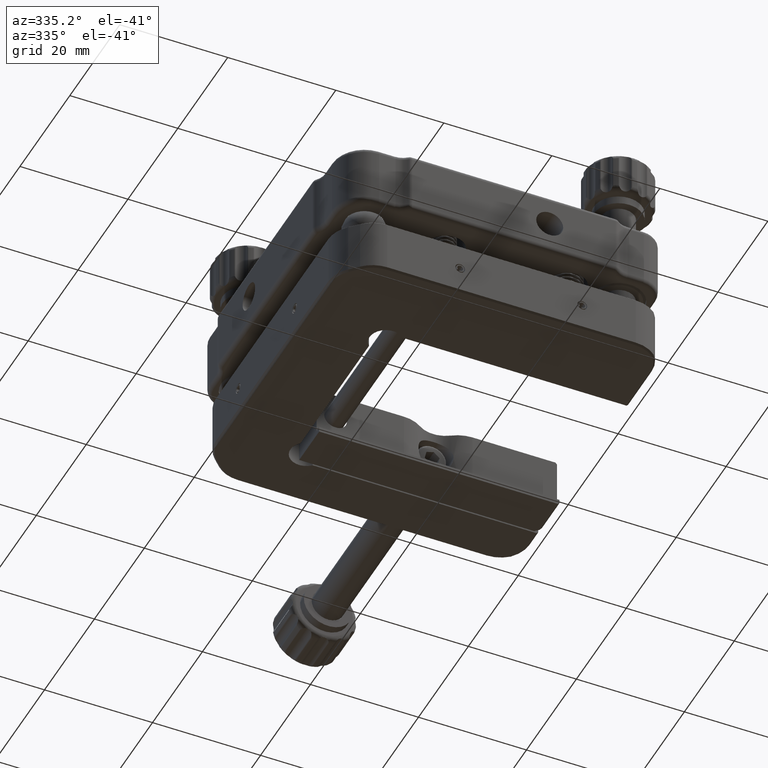
[diagram: clean part render]
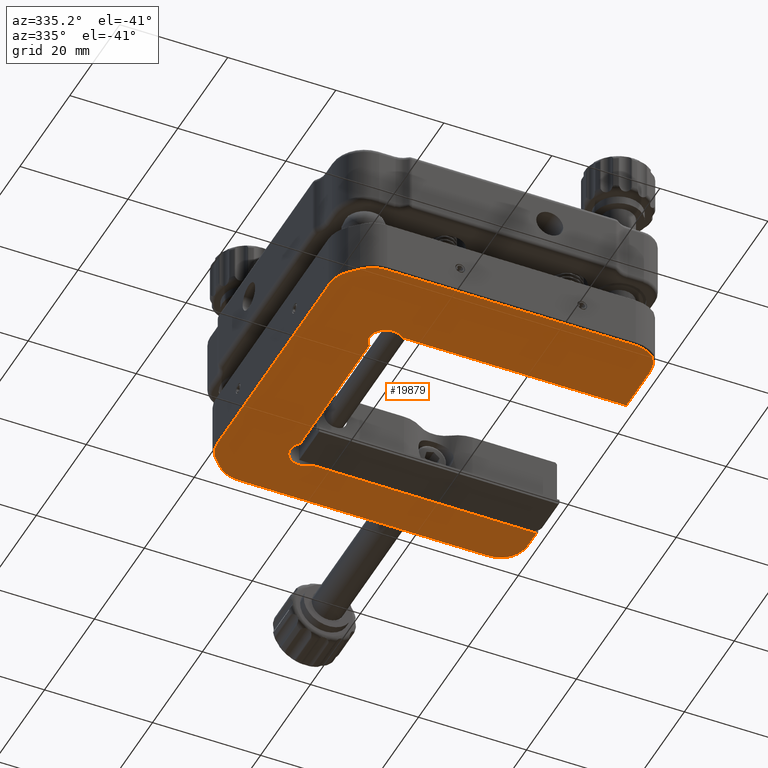
[diagram: same view with one face highlighted and labeled with its STEP entity id]
A machine part, auxiliary view. The second image highlights one B-rep face of the part: STEP entity #19879.
In plain terms, the highlighted planar face has unit normal (-0, -0, 1).
Its self-contained STEP definition (entity closure, byte-faithful):
#56 = CARTESIAN_POINT ( 'NONE',  ( 7.000000000000007994, 60.69999999999988205, -20.00000000000000000 ) ) ;
#99 = VERTEX_POINT ( 'NONE', #7551 ) ;
#312 = EDGE_CURVE ( 'NONE', #11659, #20092, #11035, .T. ) ;
#379 = CARTESIAN_POINT ( 'NONE',  ( 7.000000000000000888, 1.300000000000007816, -20.00000000000000000 ) ) ;
#777 = CARTESIAN_POINT ( 'NONE',  ( 14.00000000000000888, 51.99999999999985789, -20.00000000000000000 ) ) ;
#792 = VERTEX_POINT ( 'NONE', #7335 ) ;
#890 = DIRECTION ( 'NONE',  ( 1.387778780781444135E-17, 7.049016235973105712E-18, -1.000000000000000000 ) ) ;
#958 = CARTESIAN_POINT ( 'NONE',  ( 14.00000000000000888, 51.99999999999985789, -20.00000000000000000 ) ) ;
#983 = ORIENTED_EDGE ( 'NONE', *, *, #7374, .T. ) ;
#1009 = DIRECTION ( 'NONE',  ( 3.652049423109063291E-15, -1.000000000000000000, 0.000000000000000000 ) ) ;
#1174 = AXIS2_PLACEMENT_3D ( 'NONE', #16741, #20666, #1425 ) ;
#1326 = ORIENTED_EDGE ( 'NONE', *, *, #12778, .T. ) ;
#1425 = DIRECTION ( 'NONE',  ( 0.000000000000000000, -1.000000000000000000, 0.000000000000000000 ) ) ;
#1574 = CIRCLE ( 'NONE', #8617, 5.700000000000006395 ) ;
#1674 = DIRECTION ( 'NONE',  ( -1.156482317317879367E-16, -1.000000000000000000, -7.049016235977086995E-18 ) ) ;
#1731 = LINE ( 'NONE', #7127, #24169 ) ;
#1766 = DIRECTION ( 'NONE',  ( 1.387778780781444135E-17, 7.049016235973105712E-18, -1.000000000000000000 ) ) ;
#1819 = CARTESIAN_POINT ( 'NONE',  ( 2.969491347236677292, 4.454772721475245056, -20.00000000000000000 ) ) ;
#1842 = ORIENTED_EDGE ( 'NONE', *, *, #6983, .T. ) ;
#1933 = ORIENTED_EDGE ( 'NONE', *, *, #19581, .T. ) ;
#2149 = VERTEX_POINT ( 'NONE', #21671 ) ;
#2387 = CARTESIAN_POINT ( 'NONE',  ( 16.12132034355965615, 18.12132034355960641, -20.00000000000000000 ) ) ;
#2563 = DIRECTION ( 'NONE',  ( -1.000000000000000000, 1.156482317317863836E-16, -1.387778780781445676E-17 ) ) ;
#2820 = ORIENTED_EDGE ( 'NONE', *, *, #3545, .T. ) ;
#2895 = VERTEX_POINT ( 'NONE', #10239 ) ;
#3296 = ORIENTED_EDGE ( 'NONE', *, *, #5121, .T. ) ;
#3423 = ORIENTED_EDGE ( 'NONE', *, *, #5223, .T. ) ;
#3438 = CIRCLE ( 'NONE', #23393, 5.699999999999996625 ) ;
#3502 = LINE ( 'NONE', #18330, #24110 ) ;
#3545 = EDGE_CURVE ( 'NONE', #10803, #10062, #12477, .T. ) ;
#3660 = EDGE_CURVE ( 'NONE', #2895, #12678, #5468, .T. ) ;
#3742 = FACE_OUTER_BOUND ( 'NONE', #23582, .T. ) ;
#4292 = EDGE_CURVE ( 'NONE', #13105, #19933, #23082, .T. ) ;
#4351 = CARTESIAN_POINT ( 'NONE',  ( 18.24264068711930520, 15.99999999999996980, -20.00000000000000000 ) ) ;
#4687 = DIRECTION ( 'NONE',  ( -1.217349807703023201E-15, -1.000000000000000000, 0.000000000000000000 ) ) ;
#4746 = DIRECTION ( 'NONE',  ( -1.445602896647290044E-17, 1.000000000000000000, 7.049016235977085454E-18 ) ) ;
#4881 = EDGE_CURVE ( 'NONE', #5915, #6159, #10456, .T. ) ;
#4913 = ORIENTED_EDGE ( 'NONE', *, *, #14216, .T. ) ;
#4917 = CARTESIAN_POINT ( 'NONE',  ( 54.51471862576142513, 54.99999999999985789, -20.00000000000000000 ) ) ;
#5042 = EDGE_CURVE ( 'NONE', #23104, #99, #23790, .T. ) ;
#5121 = EDGE_CURVE ( 'NONE', #16465, #2895, #3438, .T. ) ;
#5223 = EDGE_CURVE ( 'NONE', #19933, #19630, #1731, .T. ) ;
#5353 = CARTESIAN_POINT ( 'NONE',  ( 1.299999999999991163, 8.485281374238551777, -20.00000000000000000 ) ) ;
#5468 = LINE ( 'NONE', #9043, #5832 ) ;
#5820 = DIRECTION ( 'NONE',  ( -1.156482317317879614E-16, -1.000000000000000000, -7.049016235977086995E-18 ) ) ;
#5832 = VECTOR ( 'NONE', #1674, 1000.000000000000000 ) ;
#5915 = VERTEX_POINT ( 'NONE', #8318 ) ;
#5940 = DIRECTION ( 'NONE',  ( 1.387778780781444135E-17, 7.049016235973105712E-18, -1.000000000000000000 ) ) ;
#6060 = DIRECTION ( 'NONE',  ( -1.387778780781444289E-17, -7.049016235977085454E-18, 1.000000000000000000 ) ) ;
#6159 = VERTEX_POINT ( 'NONE', #16871 ) ;
#6191 = CARTESIAN_POINT ( 'NONE',  ( 14.00000000000000888, 15.99999999999996980, -20.00000000000000000 ) ) ;
#6844 = CIRCLE ( 'NONE', #11162, 5.700000000000003730 ) ;
#6982 = ORIENTED_EDGE ( 'NONE', *, *, #19934, .F. ) ;
#6983 = EDGE_CURVE ( 'NONE', #7831, #8277, #18310, .T. ) ;
#7008 = VECTOR ( 'NONE', #4746, 1000.000000000000000 ) ;
#7099 = ORIENTED_EDGE ( 'NONE', *, *, #14635, .F. ) ;
#7127 = CARTESIAN_POINT ( 'NONE',  ( 2.969491347236677292, 4.454772721475245056, -20.00000000000000000 ) ) ;
#7335 = CARTESIAN_POINT ( 'NONE',  ( 4.454772721475265485, 59.03050865276320991, -20.00000000000000000 ) ) ;
#7374 = EDGE_CURVE ( 'NONE', #10062, #2149, #6844, .T. ) ;
#7551 = CARTESIAN_POINT ( 'NONE',  ( 54.51471862576143934, 1.300000000000002487, -20.00000000000000000 ) ) ;
#7831 = VERTEX_POINT ( 'NONE', #12096 ) ;
#7850 = ORIENTED_EDGE ( 'NONE', *, *, #10226, .T. ) ;
#8127 = DIRECTION ( 'NONE',  ( 1.387778780781444135E-17, 7.049016235973105712E-18, -1.000000000000000000 ) ) ;
#8277 = VERTEX_POINT ( 'NONE', #15586 ) ;
#8318 = CARTESIAN_POINT ( 'NONE',  ( 14.00000000000000888, 47.75735931288060243, -20.00000000000000000 ) ) ;
#8579 = DIRECTION ( 'NONE',  ( -1.521687259628776535E-16, -1.000000000000000000, 0.000000000000000000 ) ) ;
#8582 = VECTOR ( 'NONE', #10767, 1000.000000000000000 ) ;
#8617 = AXIS2_PLACEMENT_3D ( 'NONE', #17879, #19974, #8579 ) ;
#8850 = EDGE_CURVE ( 'NONE', #6159, #12678, #23033, .T. ) ;
#9043 = CARTESIAN_POINT ( 'NONE',  ( 59.70000000000001705, 7.000000000000000888, -20.00000000000000000 ) ) ;
#9213 = DIRECTION ( 'NONE',  ( -0.7071067811865479058, 0.7071067811865470176, -4.828670685620149785E-18 ) ) ;
#9275 = VERTEX_POINT ( 'NONE', #16994 ) ;
#9399 = PLANE ( 'NONE',  #10962 ) ;
#10062 = VERTEX_POINT ( 'NONE', #10312 ) ;
#10226 = EDGE_CURVE ( 'NONE', #15359, #23104, #11579, .T. ) ;
#10239 = CARTESIAN_POINT ( 'NONE',  ( 59.70000000000002416, 55.51471862576127592, -20.00000000000000000 ) ) ;
#10272 = CARTESIAN_POINT ( 'NONE',  ( 1.299999999999991163, 7.000000000000007994, -20.00000000000000000 ) ) ;
#10312 = CARTESIAN_POINT ( 'NONE',  ( 1.299999999999989608, 53.51471862576129723, -20.00000000000000000 ) ) ;
#10324 = CARTESIAN_POINT ( 'NONE',  ( 54.51471862576143934, 7.000000000000001776, -20.00000000000000000 ) ) ;
#10449 = CARTESIAN_POINT ( 'NONE',  ( 58.27964301546479930, 59.27964301546467851, -20.00000000000000000 ) ) ;
#10456 = CIRCLE ( 'NONE', #19064, 3.000000000000009770 ) ;
#10569 = DIRECTION ( 'NONE',  ( 1.387778780781444135E-17, 7.049016235973105712E-18, -1.000000000000000000 ) ) ;
#10767 = DIRECTION ( 'NONE',  ( -1.156482317317879367E-16, -1.000000000000000000, -7.049016235977086995E-18 ) ) ;
#10803 = VERTEX_POINT ( 'NONE', #5353 ) ;
#10962 = AXIS2_PLACEMENT_3D ( 'NONE', #10994, #6060, #5820 ) ;
#10994 = CARTESIAN_POINT ( 'NONE',  ( 7.000000000000001776, 7.000000000000007105, -20.00000000000000000 ) ) ;
#10998 = ORIENTED_EDGE ( 'NONE', *, *, #4292, .T. ) ;
#11021 = CARTESIAN_POINT ( 'NONE',  ( 59.70000000000002416, 7.000000000000000888, -20.00000000000000000 ) ) ;
#11035 = CIRCLE ( 'NONE', #22386, 2.999999999999995559 ) ;
#11143 = EDGE_CURVE ( 'NONE', #2149, #792, #3502, .T. ) ;
#11162 = AXIS2_PLACEMENT_3D ( 'NONE', #22910, #22558, #11640 ) ;
#11267 = VECTOR ( 'NONE', #2563, 1000.000000000000000 ) ;
#11293 = CARTESIAN_POINT ( 'NONE',  ( 59.70000000000003126, 51.99999999999985079, -20.00000000000000000 ) ) ;
#11474 = CARTESIAN_POINT ( 'NONE',  ( 14.00000000000000888, 20.24264068711924835, -20.00000000000000000 ) ) ;
#11579 = CIRCLE ( 'NONE', #20954, 5.699999999999999289 ) ;
#11640 = DIRECTION ( 'NONE',  ( -1.521687259628777275E-16, -1.000000000000000000, 0.000000000000000000 ) ) ;
#11659 = VERTEX_POINT ( 'NONE', #4351 ) ;
#11715 = LINE ( 'NONE', #6191, #16834 ) ;
#12096 = CARTESIAN_POINT ( 'NONE',  ( 8.485281374238587304, 60.69999999999988205, -20.00000000000000000 ) ) ;
#12130 = DIRECTION ( 'NONE',  ( 1.000000000000000000, -1.156482317317863836E-16, 1.387778780781445676E-17 ) ) ;
#12143 = CARTESIAN_POINT ( 'NONE',  ( 8.485281374238580199, 1.300000000000007816, -20.00000000000000000 ) ) ;
#12411 = DIRECTION ( 'NONE',  ( 1.387778780781444135E-17, 7.049016235973105712E-18, -1.000000000000000000 ) ) ;
#12477 = LINE ( 'NONE', #10272, #7008 ) ;
#12518 = AXIS2_PLACEMENT_3D ( 'NONE', #20161, #1766, #21769 ) ;
#12678 = VERTEX_POINT ( 'NONE', #11293 ) ;
#12739 = VECTOR ( 'NONE', #20280, 1000.000000000000000 ) ;
#12778 = EDGE_CURVE ( 'NONE', #99, #13105, #22924, .T. ) ;
#13105 = VERTEX_POINT ( 'NONE', #12143 ) ;
#13189 = ORIENTED_EDGE ( 'NONE', *, *, #11143, .T. ) ;
#13539 = LINE ( 'NONE', #777, #20719 ) ;
#13673 = CIRCLE ( 'NONE', #19920, 5.700000000000003730 ) ;
#13924 = DIRECTION ( 'NONE',  ( 0.000000000000000000, 1.000000000000000000, 0.000000000000000000 ) ) ;
#14216 = EDGE_CURVE ( 'NONE', #8277, #16465, #13673, .T. ) ;
#14373 = CARTESIAN_POINT ( 'NONE',  ( 54.00000000000001421, 55.51471862576127592, -20.00000000000000000 ) ) ;
#14635 = EDGE_CURVE ( 'NONE', #20092, #5915, #13539, .T. ) ;
#14969 = ORIENTED_EDGE ( 'NONE', *, *, #3660, .T. ) ;
#15124 = DIRECTION ( 'NONE',  ( 0.000000000000000000, 1.000000000000000000, 0.000000000000000000 ) ) ;
#15282 = CIRCLE ( 'NONE', #1174, 5.700000000000003730 ) ;
#15359 = VERTEX_POINT ( 'NONE', #18500 ) ;
#15488 = CARTESIAN_POINT ( 'NONE',  ( 16.12132034355965970, 49.87867965644025503, -20.00000000000000000 ) ) ;
#15586 = CARTESIAN_POINT ( 'NONE',  ( 54.51471862576142513, 60.69999999999987494, -20.00000000000000000 ) ) ;
#15845 = VECTOR ( 'NONE', #12130, 1000.000000000000000 ) ;
#16465 = VERTEX_POINT ( 'NONE', #10449 ) ;
#16547 = DIRECTION ( 'NONE',  ( -2.434699615406045218E-15, -1.000000000000000000, 0.000000000000000000 ) ) ;
#16741 = CARTESIAN_POINT ( 'NONE',  ( 8.485281374238587304, 54.99999999999986500, -20.00000000000000000 ) ) ;
#16834 = VECTOR ( 'NONE', #18822, 1000.000000000000000 ) ;
#16871 = CARTESIAN_POINT ( 'NONE',  ( 18.24264068711936559, 51.99999999999985789, -20.00000000000000000 ) ) ;
#16994 = CARTESIAN_POINT ( 'NONE',  ( 59.70000000000002416, 15.99999999999996625, -20.00000000000000000 ) ) ;
#17229 = ORIENTED_EDGE ( 'NONE', *, *, #8850, .F. ) ;
#17783 = ORIENTED_EDGE ( 'NONE', *, *, #19817, .T. ) ;
#17879 = CARTESIAN_POINT ( 'NONE',  ( 7.000000000000008882, 8.485281374238550001, -20.00000000000000000 ) ) ;
#18307 = AXIS2_PLACEMENT_3D ( 'NONE', #10324, #10569, #1009 ) ;
#18310 = LINE ( 'NONE', #56, #12739 ) ;
#18330 = CARTESIAN_POINT ( 'NONE',  ( 4.454772721475262820, 59.03050865276320991, -20.00000000000000000 ) ) ;
#18391 = DIRECTION ( 'NONE',  ( 1.387778780781444135E-17, 7.049016235973105712E-18, -1.000000000000000000 ) ) ;
#18438 = EDGE_CURVE ( 'NONE', #9275, #15359, #23884, .T. ) ;
#18455 = DIRECTION ( 'NONE',  ( 0.7071067811865512365, 0.7071067811865439090, 1.479748504792709141E-17 ) ) ;
#18500 = CARTESIAN_POINT ( 'NONE',  ( 59.70000000000002416, 6.485281374238578422, -20.00000000000000000 ) ) ;
#18822 = DIRECTION ( 'NONE',  ( -1.000000000000000000, 1.156482317317863836E-16, -1.387778780781445676E-17 ) ) ;
#19064 = AXIS2_PLACEMENT_3D ( 'NONE', #15488, #8127, #15124 ) ;
#19288 = DIRECTION ( 'NONE',  ( -4.818676322157280394E-18, 1.000000000000000000, 7.049016235977085454E-18 ) ) ;
#19298 = ORIENTED_EDGE ( 'NONE', *, *, #18438, .T. ) ;
#19581 = EDGE_CURVE ( 'NONE', #19630, #10803, #1574, .T. ) ;
#19630 = VERTEX_POINT ( 'NONE', #1819 ) ;
#19817 = EDGE_CURVE ( 'NONE', #792, #7831, #15282, .T. ) ;
#19879 = ADVANCED_FACE ( 'NONE', ( #3742 ), #9399, .F. ) ;
#19894 = ORIENTED_EDGE ( 'NONE', *, *, #312, .F. ) ;
#19920 = AXIS2_PLACEMENT_3D ( 'NONE', #4917, #12411, #21612 ) ;
#19933 = VERTEX_POINT ( 'NONE', #20902 ) ;
#19934 = EDGE_CURVE ( 'NONE', #9275, #11659, #11715, .T. ) ;
#19974 = DIRECTION ( 'NONE',  ( 1.387778780781444135E-17, 7.049016235973105712E-18, -1.000000000000000000 ) ) ;
#20092 = VERTEX_POINT ( 'NONE', #11474 ) ;
#20161 = CARTESIAN_POINT ( 'NONE',  ( 8.485281374238581975, 7.000000000000007105, -20.00000000000000000 ) ) ;
#20280 = DIRECTION ( 'NONE',  ( 1.000000000000000000, -1.156482317317863836E-16, 1.387778780781445676E-17 ) ) ;
#20463 = ORIENTED_EDGE ( 'NONE', *, *, #4881, .F. ) ;
#20479 = CARTESIAN_POINT ( 'NONE',  ( 54.00000000000001421, 6.485281374238579311, -20.00000000000000000 ) ) ;
#20563 = ORIENTED_EDGE ( 'NONE', *, *, #5042, .T. ) ;
#20666 = DIRECTION ( 'NONE',  ( 1.387778780781444135E-17, 7.049016235973105712E-18, -1.000000000000000000 ) ) ;
#20719 = VECTOR ( 'NONE', #19288, 1000.000000000000000 ) ;
#20902 = CARTESIAN_POINT ( 'NONE',  ( 4.454772721475241504, 2.969491347236684842, -20.00000000000000000 ) ) ;
#20954 = AXIS2_PLACEMENT_3D ( 'NONE', #20479, #18391, #16547 ) ;
#21612 = DIRECTION ( 'NONE',  ( -3.652049423109064868E-15, -1.000000000000000000, 0.000000000000000000 ) ) ;
#21671 = CARTESIAN_POINT ( 'NONE',  ( 2.969491347236690171, 57.54522727852464214, -20.00000000000000000 ) ) ;
#21769 = DIRECTION ( 'NONE',  ( 0.000000000000000000, -1.000000000000000000, 0.000000000000000000 ) ) ;
#22386 = AXIS2_PLACEMENT_3D ( 'NONE', #2387, #5940, #13924 ) ;
#22558 = DIRECTION ( 'NONE',  ( 1.387778780781444135E-17, 7.049016235973105712E-18, -1.000000000000000000 ) ) ;
#22910 = CARTESIAN_POINT ( 'NONE',  ( 7.000000000000010658, 53.51471862576129723, -20.00000000000000000 ) ) ;
#22924 = LINE ( 'NONE', #379, #11267 ) ;
#22998 = CARTESIAN_POINT ( 'NONE',  ( 58.27964301546477088, 2.720356984535154066, -20.00000000000000000 ) ) ;
#23033 = LINE ( 'NONE', #958, #15845 ) ;
#23082 = CIRCLE ( 'NONE', #12518, 5.700000000000007283 ) ;
#23104 = VERTEX_POINT ( 'NONE', #22998 ) ;
#23393 = AXIS2_PLACEMENT_3D ( 'NONE', #14373, #890, #4687 ) ;
#23582 = EDGE_LOOP ( 'NONE', ( #6982, #19298, #7850, #20563, #1326, #10998, #3423, #1933, #2820, #983, #13189, #17783, #1842, #4913, #3296, #14969, #17229, #20463, #7099, #19894 ) ) ;
#23790 = CIRCLE ( 'NONE', #18307, 5.700000000000006395 ) ;
#23884 = LINE ( 'NONE', #11021, #8582 ) ;
#24110 = VECTOR ( 'NONE', #18455, 999.9999999999998863 ) ;
#24169 = VECTOR ( 'NONE', #9213, 1000.000000000000114 ) ;